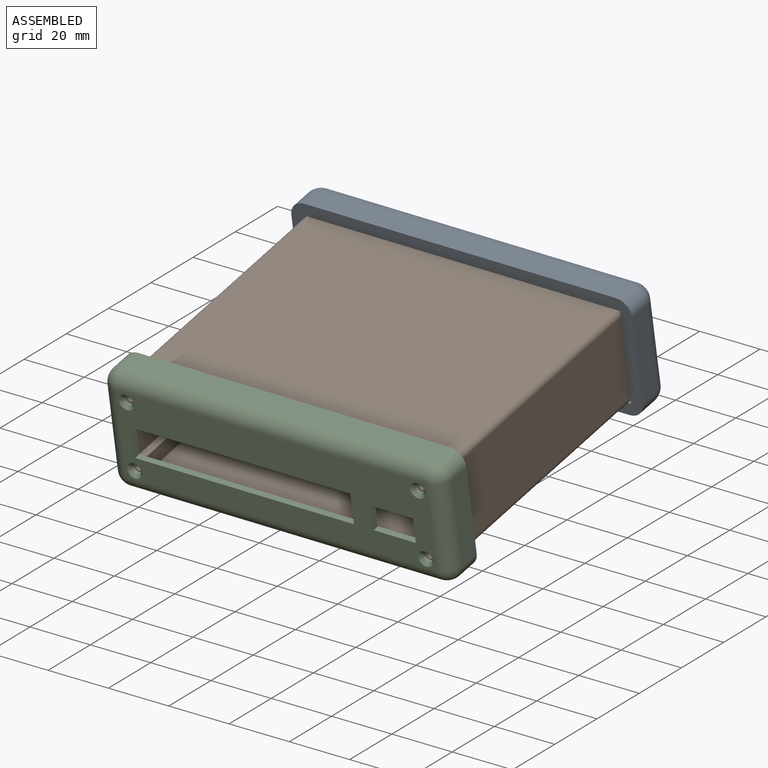
[diagram: assembled view]
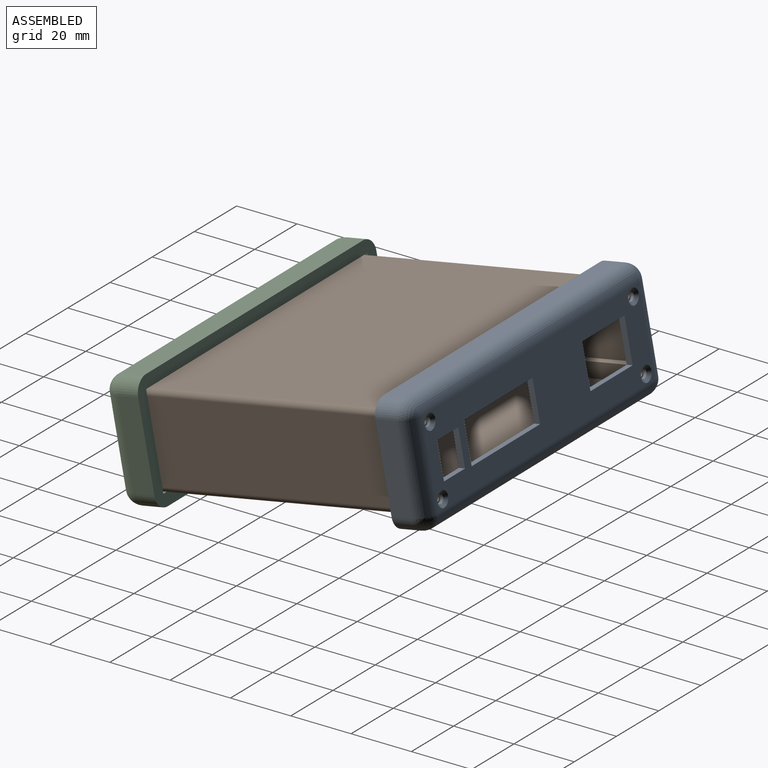
[diagram: assembled view, second angle]
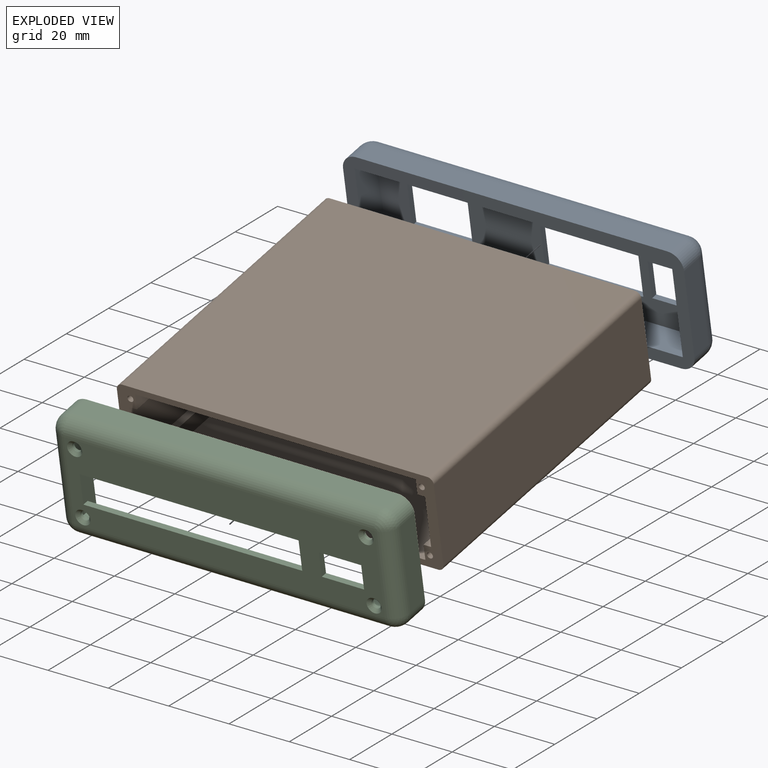
[diagram: exploded view]
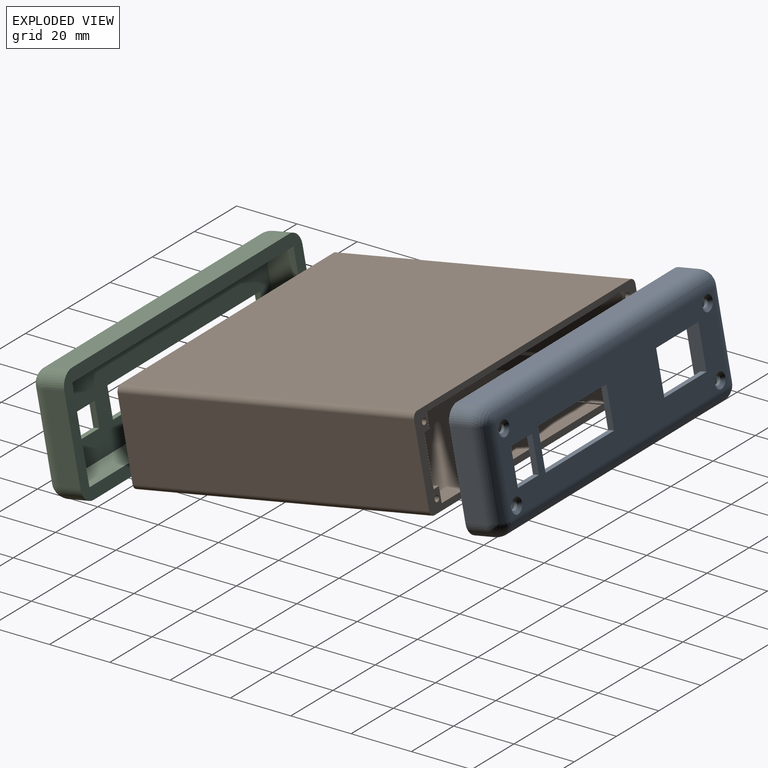
[diagram: exploded view, second angle]
ASSEMBLY  parts=3 mates=2
PART A: 43 faces, bbox 113x12x38.5 mm
  f0: plane 105x30.5mm, normal (0,1,0), area 2325.5mm2, adj f1,f2,f3,f4,f5,f6,f7,f8
  f1: plane 14.5x2mm, normal (1,0,0), area 29mm2, adj f0,f2,f20,f21
  f2: plane 20x2mm, normal (0,0,-1), area 40mm2, adj f0,f1,f3,f21
  f3: plane 14.5x2mm, normal (-1,0,0), area 29mm2, adj f0,f2,f20,f21
  f4: plane 13.5x2mm, normal (1,0,0), area 27mm2, adj f0,f5,f17,f21
  f5: plane 32.5x2mm, normal (0,0,-1), area 65mm2, adj f0,f4,f6,f21
  f6: plane 13.5x2mm, normal (-1,0,0), area 27mm2, adj f0,f5,f17,f21
  f7: plane 12x2mm, normal (1,0,0), area 24mm2, adj f0,f8,f18,f21
  f8: plane 10x2mm, normal (0,0,-1), area 20mm2, adj f0,f7,f9,f21
  f9: plane 12x2mm, normal (-1,0,0), area 24mm2, adj f0,f8,f18,f21
  f10: cylinder r=5mm len=7mm, axis (0,1,0), area 55mm2, adj f11,f19,f26,f36
  f11: plane 103x7mm, normal (0,0,1), area 721mm2, adj f10,f12,f26,f35
  f12: cylinder r=5mm len=7mm, axis (0,1,0), area 55mm2, adj f11,f13,f26,f37
  f13: plane 28.5x7mm, normal (-1,0,0), area 199.5mm2, adj f12,f14,f26,f39
  f14: cylinder r=5mm len=7mm, axis (0,1,0), area 55mm2, adj f13,f15,f26,f41
  f15: plane 103x7mm, normal (0,0,-1), area 721mm2, adj f14,f16,f26,f42
  f16: cylinder r=5mm len=7mm, axis (0,1,0), area 55mm2, adj f15,f19,f26,f40
  f17: plane 32.5x2mm, normal (0,0,1), area 65mm2, adj f0,f4,f6,f21
  f18: plane 10x2mm, normal (0,0,1), area 20mm2, adj f0,f7,f9,f21
  f19: plane 28.5x7mm, normal (1,0,0), area 199.5mm2, adj f10,f16,f26,f38
  f20: plane 20x2mm, normal (0,0,1), area 40mm2, adj f0,f1,f3,f21
  f21: plane 103x28.5mm, normal (0,-1,0), area 2008.2mm2, adj f1,f2,f3,f4,f5,f6,f7,f8
  f22: plane 30.5x10mm, normal (1,0,0), area 305mm2, adj f0,f23,f25,f26
  f23: plane 105x10mm, normal (0,0,-1), area 1050mm2, adj f0,f22,f24,f26
  f24: plane 30.5x10mm, normal (-1,0,0), area 305mm2, adj f0,f23,f25,f26
  f25: plane 105x10mm, normal (0,0,1), area 1050mm2, adj f0,f22,f24,f26
  f26: plane 113x38.5mm, normal (0,1,0), area 1126.5mm2, adj f10,f11,f12,f13,f14,f15,f16,f19
  f27: cylinder r=1.5mm len=3mm, axis (0,-1,0), area 9.4mm2, adj f0,f28
  f28: cone r=1.5mm half-angle=45deg, axis (0,-1,0), area 17.8mm2, adj f21,f27
  f29: cylinder r=1.5mm len=3mm, axis (0,-1,0), area 9.4mm2, adj f0,f30
  f30: cone r=1.5mm half-angle=45deg, axis (0,-1,0), area 17.8mm2, adj f21,f29
  f31: cylinder r=1.5mm len=3mm, axis (0,-1,0), area 9.4mm2, adj f0,f32
  f32: cone r=1.5mm half-angle=45deg, axis (0,-1,0), area 17.8mm2, adj f21,f31
  f33: cylinder r=1.5mm len=3mm, axis (0,-1,0), area 9.4mm2, adj f0,f34
  f34: cone r=1.5mm half-angle=45deg, axis (0,-1,0), area 17.8mm2, adj f21,f33
  f35: cylinder r=5mm len=103mm, axis (1,0,0), area 809mm2, adj f11,f21,f36,f37
  f36: sphere r=5mm, area 39.3mm2, adj f10,f35,f38
  f37: sphere r=5mm, area 39.3mm2, adj f12,f35,f39
  f38: cylinder r=5mm len=28.5mm, axis (0,0,-1), area 223.8mm2, adj f19,f21,f36,f40
  f39: cylinder r=5mm len=28.5mm, axis (0,0,1), area 223.8mm2, adj f13,f21,f37,f41
  f40: sphere r=5mm, area 39.3mm2, adj f16,f38,f42
  f41: sphere r=5mm, area 39.3mm2, adj f14,f39,f42
  f42: cylinder r=5mm len=103mm, axis (-1,0,0), area 809mm2, adj f15,f21,f40,f41
PART B: 26 faces, bbox 105x100x30.5 mm
  f0: cylinder r=2mm len=100mm, axis (0,1,0), area 314.2mm2, adj f1,f21,f24,f25
  f1: plane 101x100mm, normal (0,0,-1), area 10100mm2, adj f0,f2,f24,f25
  f2: cylinder r=2mm len=100mm, axis (0,1,0), area 314.2mm2, adj f1,f3,f24,f25
  f3: plane 100x26.5mm, normal (1,0,0), area 2650mm2, adj f2,f4,f24,f25
  f4: cylinder r=2mm len=100mm, axis (0,1,0), area 314.2mm2, adj f3,f5,f24,f25
  f5: plane 101x100mm, normal (0,0,1), area 10100mm2, adj f4,f6,f24,f25
  f6: cylinder r=2mm len=100mm, axis (0,1,0), area 314.2mm2, adj f5,f21,f24,f25
  f7: plane 100x5mm, normal (1,0,0), area 500mm2, adj f8,f22,f24,f25
  f8: plane 100x93mm, normal (0,0,-1), area 9300mm2, adj f7,f9,f24,f25
  f9: plane 100x5mm, normal (-1,0,0), area 500mm2, adj f8,f10,f24,f25
  f10: plane 100x2.5mm, normal (0,0,-1), area 250mm2, adj f9,f11,f24,f25
  f11: plane 100x16.5mm, normal (-1,0,0), area 1650mm2, adj f10,f12,f24,f25
  f12: plane 100x2.5mm, normal (0,0,1), area 250mm2, adj f11,f13,f24,f25
  f13: plane 100x5mm, normal (-1,0,0), area 500mm2, adj f12,f14,f24,f25
  f14: plane 100x93mm, normal (0,0,1), area 9300mm2, adj f13,f15,f24,f25
  f15: plane 100x5mm, normal (1,0,0), area 500mm2, adj f14,f16,f24,f25
  f16: plane 100x2.5mm, normal (0,0,1), area 250mm2, adj f15,f17,f24,f25
  f17: plane 100x16.5mm, normal (1,0,0), area 1650mm2, adj f16,f22,f24,f25
  f18: cylinder r=1mm len=100mm, axis (0,1,0), area 628.3mm2, adj f24,f25
  f19: cylinder r=1mm len=100mm, axis (0,1,0), area 628.3mm2, adj f24,f25
  f20: cylinder r=1mm len=100mm, axis (0,1,0), area 628.3mm2, adj f24,f25
  f21: plane 100x26.5mm, normal (-1,0,0), area 2650mm2, adj f0,f6,f24,f25
  f22: plane 100x2.5mm, normal (0,0,-1), area 250mm2, adj f7,f17,f24,f25
  f23: cylinder r=1mm len=100mm, axis (0,1,0), area 628.3mm2, adj f24,f25
  f24: plane 105x30.5mm, normal (0,-1,0), area 639.5mm2, adj f0,f1,f2,f3,f4,f5,f6,f7
  f25: plane 105x30.5mm, normal (0,1,0), area 639.5mm2, adj f0,f1,f2,f3,f4,f5,f6,f7
PART C: 39 faces, bbox 113x12x38.5 mm
  f0: plane 105x30.5mm, normal (0,1,0), area 2337.2mm2, adj f1,f2,f3,f4,f5,f6,f14,f16
  f1: plane 8x2mm, normal (1,0,0), area 16mm2, adj f0,f2,f16,f17
  f2: plane 14x2mm, normal (0,0,-1), area 28mm2, adj f0,f1,f3,f17
  f3: plane 8x2mm, normal (-1,0,0), area 16mm2, adj f0,f2,f16,f17
  f4: plane 10x2mm, normal (1,0,0), area 20mm2, adj f0,f5,f14,f17
  f5: plane 72.5x2mm, normal (0,0,-1), area 145mm2, adj f0,f4,f6,f17
  f6: plane 10x2mm, normal (-1,0,0), area 20mm2, adj f0,f5,f14,f17
  f7: cylinder r=5mm len=7mm, axis (0,1,0), area 55mm2, adj f8,f15,f22,f32
  f8: plane 103x7mm, normal (0,0,1), area 721mm2, adj f7,f9,f22,f31
  f9: cylinder r=5mm len=7mm, axis (0,1,0), area 55mm2, adj f8,f10,f22,f33
  f10: plane 28.5x7mm, normal (-1,0,0), area 199.5mm2, adj f9,f11,f22,f35
  f11: cylinder r=5mm len=7mm, axis (0,1,0), area 55mm2, adj f10,f12,f22,f37
  f12: plane 103x7mm, normal (0,0,-1), area 721mm2, adj f11,f13,f22,f38
  f13: cylinder r=5mm len=7mm, axis (0,1,0), area 55mm2, adj f12,f15,f22,f36
  f14: plane 72.5x2mm, normal (0,0,1), area 145mm2, adj f0,f4,f6,f17
  f15: plane 28.5x7mm, normal (1,0,0), area 199.5mm2, adj f7,f13,f22,f34
  f16: plane 14x2mm, normal (0,0,1), area 28mm2, adj f0,f1,f3,f17
  f17: plane 103x28.5mm, normal (0,-1,0), area 2020mm2, adj f1,f2,f3,f4,f5,f6,f14,f16
  f18: plane 30.5x10mm, normal (1,0,0), area 305mm2, adj f0,f19,f21,f22
  f19: plane 105x10mm, normal (0,0,-1), area 1050mm2, adj f0,f18,f20,f22
  f20: plane 30.5x10mm, normal (-1,0,0), area 305mm2, adj f0,f19,f21,f22
  f21: plane 105x10mm, normal (0,0,1), area 1050mm2, adj f0,f18,f20,f22
  f22: plane 113x38.5mm, normal (0,1,0), area 1126.5mm2, adj f7,f8,f9,f10,f11,f12,f13,f15
  f23: cylinder r=1.5mm len=3mm, axis (0,-1,0), area 9.4mm2, adj f0,f24
  f24: cone r=1.5mm half-angle=45deg, axis (0,-1,0), area 17.8mm2, adj f17,f23
  f25: cylinder r=1.5mm len=3mm, axis (0,-1,0), area 9.4mm2, adj f0,f26
  f26: cone r=1.5mm half-angle=45deg, axis (0,-1,0), area 17.8mm2, adj f17,f25
  f27: cylinder r=1.5mm len=3mm, axis (0,-1,0), area 9.4mm2, adj f0,f28
  f28: cone r=1.5mm half-angle=45deg, axis (0,-1,0), area 17.8mm2, adj f17,f27
  f29: cylinder r=1.5mm len=3mm, axis (0,-1,0), area 9.4mm2, adj f0,f30
  f30: cone r=1.5mm half-angle=45deg, axis (0,-1,0), area 17.8mm2, adj f17,f29
  f31: cylinder r=5mm len=103mm, axis (1,0,0), area 809mm2, adj f8,f17,f32,f33
  f32: sphere r=5mm, area 39.3mm2, adj f7,f31,f34
  f33: sphere r=5mm, area 39.3mm2, adj f9,f31,f35
  f34: cylinder r=5mm len=28.5mm, axis (0,0,-1), area 223.8mm2, adj f15,f17,f32,f36
  f35: cylinder r=5mm len=28.5mm, axis (0,0,1), area 223.8mm2, adj f10,f17,f33,f37
  f36: sphere r=5mm, area 39.3mm2, adj f13,f34,f38
  f37: sphere r=5mm, area 39.3mm2, adj f11,f35,f38
  f38: cylinder r=5mm len=103mm, axis (-1,0,0), area 809mm2, adj f12,f17,f36,f37
PLACE A rot(axis=(0,0.09,-1),180deg) t=(-27.69,-178.48,-84.56)mm
PLACE B rot(axis=(1,0.04,0),10.5deg) t=(-27.69,-178.48,-84.56)mm
PLACE C rot(axis=(1,0.04,0),10.5deg) t=(-27.69,-178.48,-84.56)mm
MATE planar B.f24 <-> C.f0  axis (0,-0.98,-0.18) through (-76.64,-229.21,-85.26)mm
MATE planar A.f0 <-> B.f25  axis (0,-0.98,-0.18) through (-26.65,-130.47,-69.28)mm
